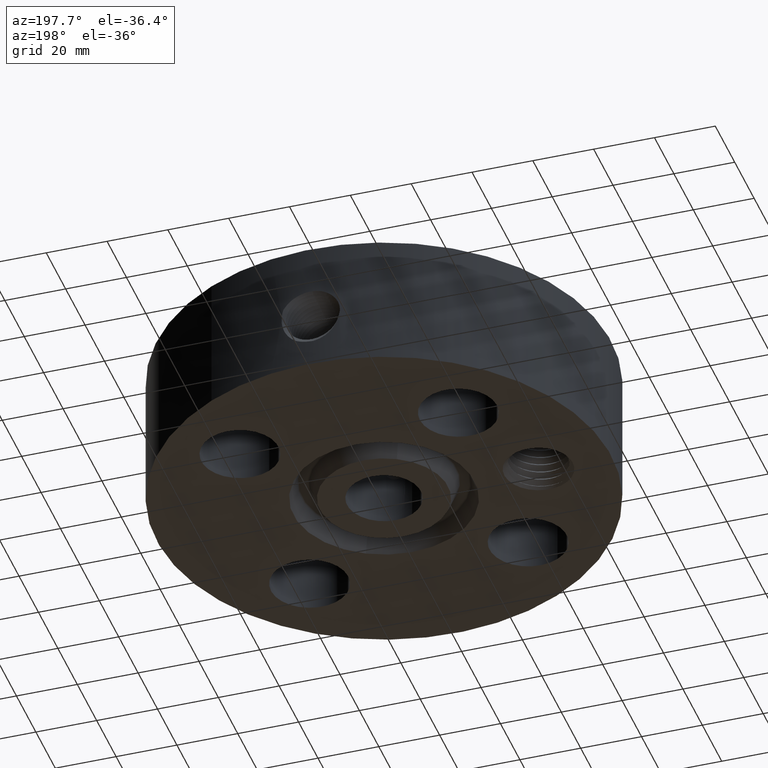
[diagram: clean part render]
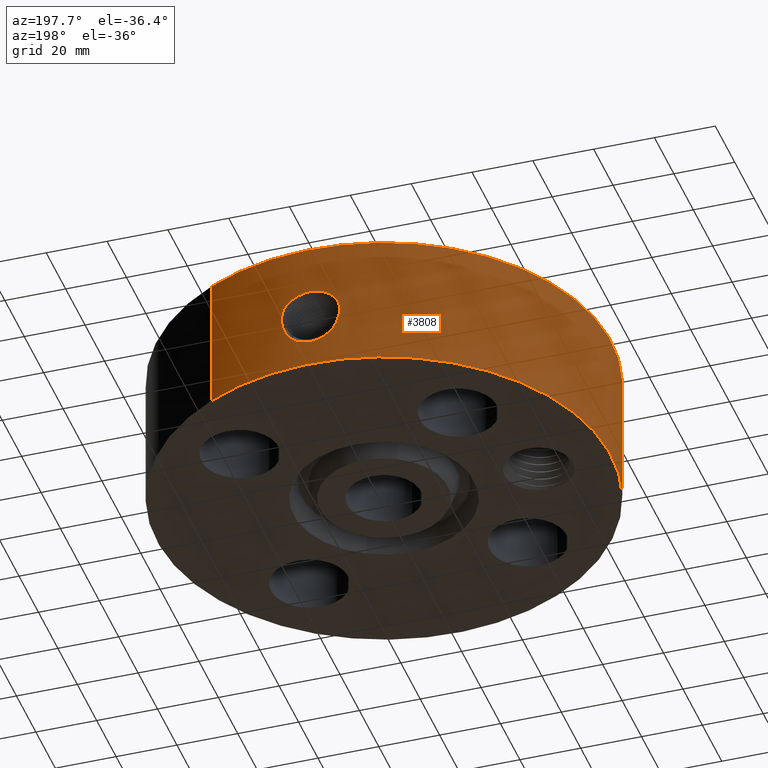
[diagram: same view with one face highlighted and labeled with its STEP entity id]
A machine part, auxiliary view. The second image highlights one B-rep face of the part: STEP entity #3808.
In plain terms, the highlighted cylindrical surface (partial cylindrical patch) has radius 74.676 mm, axis along (0, 0, -1).
Its self-contained STEP definition (entity closure, byte-faithful):
#2927=AXIS2_PLACEMENT_3D('Circle Axis2P3D',#2925,#2926,$) ;
#3663=AXIS2_PLACEMENT_3D('Cylinder Axis2P3D',#3660,#3661,#3662) ;
#3667=AXIS2_PLACEMENT_3D('Circle Axis2P3D',#3665,#3666,$) ;
#2920=CARTESIAN_POINT('Vertex',(1.4095110835,2.58009273197,1.75000000001)) ;
#2922=CARTESIAN_POINT('Vertex',(-1.4095110835,-2.58009273197,1.75000000001)) ;
#2925=CARTESIAN_POINT('Axis2P3D Location',(0.,0.,1.75000000001)) ;
#3660=CARTESIAN_POINT('Axis2P3D Location',(0.,0.,1.75000000001)) ;
#3665=CARTESIAN_POINT('Axis2P3D Location',(0.,0.,2.79741234551E-016)) ;
#3669=CARTESIAN_POINT('Vertex',(-1.4095110835,-2.58009273197,0.)) ;
#3671=CARTESIAN_POINT('Vertex',(1.4095110835,2.58009273197,0.)) ;
#3674=CARTESIAN_POINT('Line Origine',(-1.4095110835,-2.58009273197,0.875000000003)) ;
#3679=CARTESIAN_POINT('Line Origine',(1.4095110835,2.58009273197,0.875000000003)) ;
#3691=CARTESIAN_POINT('Control Point',(-0.169700366944,2.93509825824,1.06063443806)) ;
#3692=CARTESIAN_POINT('Control Point',(-0.131085530342,2.93733087581,1.08180932067)) ;
#3693=CARTESIAN_POINT('Control Point',(-0.0889177433839,2.93909301678,1.0965837277)) ;
#3694=CARTESIAN_POINT('Control Point',(-0.0448209569393,2.9399891375,1.10402874798)) ;
#3695=CARTESIAN_POINT('Control Point',(-0.000718274457064,2.93999991227,1.10411849394)) ;
#3696=CARTESIAN_POINT('Vertex',(-0.169700366944,2.93509825824,1.06063443806)) ;
#3698=CARTESIAN_POINT('Vertex',(-0.000717903984773,2.93999991236,1.10411850387)) ;
#3702=CARTESIAN_POINT('Control Point',(-0.199791073538,2.93320362863,1.04211912548)) ;
#3703=CARTESIAN_POINT('Control Point',(-0.190079562307,2.93386511467,1.0487862313)) ;
#3704=CARTESIAN_POINT('Control Point',(-0.180032879056,2.93450085708,1.05496848813)) ;
#3705=CARTESIAN_POINT('Control Point',(-0.169700366944,2.93509825824,1.06063443806)) ;
#3706=CARTESIAN_POINT('Vertex',(-0.199780777618,2.93320402896,1.0421261842)) ;
#3710=CARTESIAN_POINT('Control Point',(-0.34506361677,2.91967996542,0.673306923274)) ;
#3711=CARTESIAN_POINT('Control Point',(-0.3583098038,2.91811445918,0.712767227099)) ;
#3712=CARTESIAN_POINT('Control Point',(-0.36482768825,2.91726797081,0.75486871375)) ;
#3713=CARTESIAN_POINT('Control Point',(-0.363474123528,2.91744520346,0.798064414402)) ;
#3714=CARTESIAN_POINT('Control Point',(-0.344937033169,2.91981225162,0.88342999424)) ;
#3715=CARTESIAN_POINT('Control Point',(-0.299056820006,2.92490799639,0.9575201359)) ;
#3716=CARTESIAN_POINT('Control Point',(-0.269831468578,2.92785982832,0.990770006024)) ;
#3717=CARTESIAN_POINT('Control Point',(-0.236375450335,2.93071186714,1.01904410814)) ;
#3718=CARTESIAN_POINT('Control Point',(-0.199780516738,2.93320434767,1.04212578833)) ;
#3719=CARTESIAN_POINT('Vertex',(-0.345064098333,2.91967961509,0.673306674958)) ;
#3723=CARTESIAN_POINT('Control Point',(-0.338276411989,2.92047411719,0.647346824529)) ;
#3724=CARTESIAN_POINT('Control Point',(-0.340865596909,2.92017421376,0.655911274981)) ;
#3725=CARTESIAN_POINT('Control Point',(-0.343130753686,2.91990840275,0.664574595669)) ;
#3726=CARTESIAN_POINT('Control Point',(-0.345065246214,2.91967977284,0.673311896522)) ;
#3727=CARTESIAN_POINT('Vertex',(-0.338277883822,2.92047432402,0.647351428598)) ;
#3731=CARTESIAN_POINT('Control Point',(-0.0275173268744,2.93987122112,0.340942006435)) ;
#3732=CARTESIAN_POINT('Control Point',(-0.0762223838759,2.9394153396,0.347299418923)) ;
#3733=CARTESIAN_POINT('Control Point',(-0.123500792099,2.937964098,0.362621511108)) ;
#3734=CARTESIAN_POINT('Control Point',(-0.166891887126,2.93566147174,0.386269408402)) ;
#3735=CARTESIAN_POINT('Control Point',(-0.2418445424,2.9304753363,0.444906617799)) ;
#3736=CARTESIAN_POINT('Control Point',(-0.294766646892,2.92532991451,0.521484753112)) ;
#3737=CARTESIAN_POINT('Control Point',(-0.315003642533,2.92313640206,0.561985172137)) ;
#3738=CARTESIAN_POINT('Control Point',(-0.329503482282,2.92149028206,0.604252697731)) ;
#3739=CARTESIAN_POINT('Control Point',(-0.338277313576,2.92047401276,0.647351395214)) ;
#3740=CARTESIAN_POINT('Vertex',(-0.0275173268744,2.93987122112,0.340942006435)) ;
#3744=CARTESIAN_POINT('Control Point',(-0.0275173268744,2.93987122112,0.340942006435)) ;
#3745=CARTESIAN_POINT('Control Point',(-0.0183369221419,2.93995715012,0.340841669845)) ;
#3746=CARTESIAN_POINT('Control Point',(-0.00915835337652,2.94000000851,0.340985895786)) ;
#3747=CARTESIAN_POINT('Control Point',(2.72878353239E-006,2.94000000001,0.341374667803)) ;
#3748=CARTESIAN_POINT('Vertex',(2.72878353429E-006,2.94000000001,0.341374667803)) ;
#3752=CARTESIAN_POINT('Control Point',(0.196461758711,2.93342850219,0.390384428302)) ;
#3753=CARTESIAN_POINT('Control Point',(0.150541537967,2.93650393672,0.36807454774)) ;
#3754=CARTESIAN_POINT('Control Point',(0.101543565512,2.93882209151,0.352443293339)) ;
#3755=CARTESIAN_POINT('Control Point',(0.0509887692481,2.93999995269,0.343538380556)) ;
#3756=CARTESIAN_POINT('Control Point',(2.72878353763E-006,2.94000000001,0.341374667803)) ;
#3757=CARTESIAN_POINT('Vertex',(0.196461421185,2.93342346249,0.390384428302)) ;
#3761=CARTESIAN_POINT('Control Point',(0.196461794057,2.93342849982,0.390384447707)) ;
#3762=CARTESIAN_POINT('Control Point',(0.196533175314,2.93342371917,0.390423635179)) ;
#3763=CARTESIAN_POINT('Control Point',(0.196604556338,2.93341893505,0.390462822651)) ;
#3764=CARTESIAN_POINT('Vertex',(0.196604556338,2.93341893505,0.390462822651)) ;
#3768=CARTESIAN_POINT('Control Point',(0.196604556338,2.93341893505,0.390462822651)) ;
#3769=CARTESIAN_POINT('Control Point',(0.238592000763,2.93060483891,0.416305213245)) ;
#3770=CARTESIAN_POINT('Control Point',(0.276117910717,2.9273351574,0.449020648595)) ;
#3771=CARTESIAN_POINT('Control Point',(0.307968912244,2.92401885466,0.486947807889)) ;
#3772=CARTESIAN_POINT('Control Point',(0.372076346215,2.91667343123,0.589443113874)) ;
#3773=CARTESIAN_POINT('Control Point',(0.400070786757,2.91264589938,0.707593443783)) ;
#3774=CARTESIAN_POINT('Control Point',(0.403738808349,2.9121038139,0.779863248816)) ;
#3775=CARTESIAN_POINT('Control Point',(0.394391606913,2.91351385758,0.851921489152)) ;
#3776=CARTESIAN_POINT('Control Point',(0.372039711615,2.91636528114,0.920500698451)) ;
#3777=CARTESIAN_POINT('Vertex',(0.372039711615,2.91636528114,0.920500698451)) ;
#3781=CARTESIAN_POINT('Control Point',(0.372039711615,2.91636528114,0.920500698451)) ;
#3782=CARTESIAN_POINT('Control Point',(0.322920720594,2.92263137386,0.996138317911)) ;
#3783=CARTESIAN_POINT('Control Point',(0.251553243545,2.93070739704,1.05504313551)) ;
#3784=CARTESIAN_POINT('Control Point',(0.169948928761,2.93699921288,1.09172364479)) ;
#3785=CARTESIAN_POINT('Control Point',(0.0841723406348,2.94000074044,1.10828021464)) ;
#3786=CARTESIAN_POINT('Control Point',(-2.58579354822E-005,2.9399999999,1.10415298444)) ;
#3787=CARTESIAN_POINT('Vertex',(-2.58579354873E-005,2.9399999999,1.10415298444)) ;
#3791=CARTESIAN_POINT('Control Point',(-0.000717903970393,2.93999991236,1.10411850386)) ;
#3792=CARTESIAN_POINT('Control Point',(-0.000371902896506,2.93999999685,1.10413602199)) ;
#3793=CARTESIAN_POINT('Control Point',(-2.58579462961E-005,2.9399999999,1.10415298443)) ;
#2926=DIRECTION('Axis2P3D Direction',(0.,0.,-0.0393700787402)) ;
#3661=DIRECTION('Axis2P3D Direction',(0.,0.,-0.0393700787402)) ;
#3662=DIRECTION('Axis2P3D XDirection',(0.0188750212049,0.0345504945626,0.)) ;
#3666=DIRECTION('Axis2P3D Direction',(0.,0.,-0.0393700787402)) ;
#3675=DIRECTION('Vector Direction',(0.,0.,-0.0393700787402)) ;
#3680=DIRECTION('Vector Direction',(0.,0.,-0.0393700787402)) ;
#3676=VECTOR('Line Direction',#3675,0.0393700787402) ;
#3681=VECTOR('Line Direction',#3680,0.0393700787402) ;
#3685=ORIENTED_EDGE('',*,*,#3673,.F.) ;
#3686=ORIENTED_EDGE('',*,*,#3678,.T.) ;
#3687=ORIENTED_EDGE('',*,*,#2929,.T.) ;
#3688=ORIENTED_EDGE('',*,*,#3683,.F.) ;
#3796=ORIENTED_EDGE('',*,*,#3700,.F.) ;
#3797=ORIENTED_EDGE('',*,*,#3708,.F.) ;
#3798=ORIENTED_EDGE('',*,*,#3721,.F.) ;
#3799=ORIENTED_EDGE('',*,*,#3729,.F.) ;
#3800=ORIENTED_EDGE('',*,*,#3742,.F.) ;
#3801=ORIENTED_EDGE('',*,*,#3750,.T.) ;
#3802=ORIENTED_EDGE('',*,*,#3759,.F.) ;
#3803=ORIENTED_EDGE('',*,*,#3766,.T.) ;
#3804=ORIENTED_EDGE('',*,*,#3779,.T.) ;
#3805=ORIENTED_EDGE('',*,*,#3789,.T.) ;
#3806=ORIENTED_EDGE('',*,*,#3794,.F.) ;
#3807=FACE_BOUND('',#3795,.T.) ;
#3808=ADVANCED_FACE('PartBody',(#3689,#3807),#3664,.T.) ;
#3690=B_SPLINE_CURVE_WITH_KNOTS('',4,(#3691,#3692,#3693,#3694,#3695),.UNSPECIFIED.,.F.,.U.,(5,5),(0.,6.52375944429),.UNSPECIFIED.) ;
#3701=B_SPLINE_CURVE_WITH_KNOTS('',3,(#3702,#3703,#3704,#3705),.UNSPECIFIED.,.F.,.U.,(4,4),(27.427602186,28.7368170384),.UNSPECIFIED.) ;
#3709=B_SPLINE_CURVE_WITH_KNOTS('',5,(#3710,#3711,#3712,#3713,#3714,#3715,#3716,#3717,#3718),.UNSPECIFIED.,.F.,.U.,(6,3,6),(0.,7.77867063943,15.863687785),.UNSPECIFIED.) ;
#3722=B_SPLINE_CURVE_WITH_KNOTS('',3,(#3723,#3724,#3725,#3726),.UNSPECIFIED.,.F.,.U.,(4,4),(10.8529361739,11.8469806349),.UNSPECIFIED.) ;
#3730=B_SPLINE_CURVE_WITH_KNOTS('',5,(#3731,#3732,#3733,#3734,#3735,#3736,#3737,#3738,#3739),.UNSPECIFIED.,.F.,.U.,(6,3,6),(0.,8.53786061277,16.7787300395),.UNSPECIFIED.) ;
#3743=B_SPLINE_CURVE_WITH_KNOTS('',3,(#3744,#3745,#3746,#3747),.UNSPECIFIED.,.F.,.U.,(4,4),(0.,0.957440174971),.UNSPECIFIED.) ;
#3751=B_SPLINE_CURVE_WITH_KNOTS('',4,(#3752,#3753,#3754,#3755,#3756),.UNSPECIFIED.,.F.,.U.,(5,5),(0.,7.10484964948),.UNSPECIFIED.) ;
#3760=B_SPLINE_CURVE_WITH_KNOTS('',2,(#3761,#3762,#3763),.UNSPECIFIED.,.F.,.U.,(3,3),(-0.00207138548236,0.00207241144614),.UNSPECIFIED.) ;
#3767=B_SPLINE_CURVE_WITH_KNOTS('',5,(#3768,#3769,#3770,#3771,#3772,#3773,#3774,#3775,#3776),.UNSPECIFIED.,.F.,.U.,(6,3,6),(0.,8.57505192143,21.1331301305),.UNSPECIFIED.) ;
#3780=B_SPLINE_CURVE_WITH_KNOTS('',5,(#3781,#3782,#3783,#3784,#3785,#3786),.UNSPECIFIED.,.F.,.U.,(6,6),(0.,15.738381811),.UNSPECIFIED.) ;
#3790=B_SPLINE_CURVE_WITH_KNOTS('',2,(#3791,#3792,#3793),.UNSPECIFIED.,.F.,.U.,(3,3),(1.20450598459,1.23037916553),.UNSPECIFIED.) ;
#2928=CIRCLE('generated circle',#2927,2.94000000001) ;
#3668=CIRCLE('generated circle',#3667,2.94000000001) ;
#3664=CYLINDRICAL_SURFACE('generated cylinder',#3663,2.94000000001) ;
#2929=EDGE_CURVE('',#2923,#2921,#2928,.T.) ;
#3673=EDGE_CURVE('',#3670,#3672,#3668,.T.) ;
#3678=EDGE_CURVE('',#3670,#2923,#3677,.F.) ;
#3683=EDGE_CURVE('',#3672,#2921,#3682,.F.) ;
#3700=EDGE_CURVE('',#3697,#3699,#3690,.T.) ;
#3708=EDGE_CURVE('',#3707,#3697,#3701,.T.) ;
#3721=EDGE_CURVE('',#3720,#3707,#3709,.T.) ;
#3729=EDGE_CURVE('',#3728,#3720,#3722,.T.) ;
#3742=EDGE_CURVE('',#3741,#3728,#3730,.T.) ;
#3750=EDGE_CURVE('',#3741,#3749,#3743,.T.) ;
#3759=EDGE_CURVE('',#3758,#3749,#3751,.T.) ;
#3766=EDGE_CURVE('',#3758,#3765,#3760,.T.) ;
#3779=EDGE_CURVE('',#3765,#3778,#3767,.T.) ;
#3789=EDGE_CURVE('',#3778,#3788,#3780,.T.) ;
#3794=EDGE_CURVE('',#3699,#3788,#3790,.T.) ;
#3684=EDGE_LOOP('',(#3685,#3686,#3687,#3688)) ;
#3795=EDGE_LOOP('',(#3796,#3797,#3798,#3799,#3800,#3801,#3802,#3803,#3804,#3805,#3806)) ;
#3689=FACE_OUTER_BOUND('',#3684,.T.) ;
#3677=LINE('Line',#3674,#3676) ;
#3682=LINE('Line',#3679,#3681) ;
#2921=VERTEX_POINT('',#2920) ;
#2923=VERTEX_POINT('',#2922) ;
#3670=VERTEX_POINT('',#3669) ;
#3672=VERTEX_POINT('',#3671) ;
#3697=VERTEX_POINT('',#3696) ;
#3699=VERTEX_POINT('',#3698) ;
#3707=VERTEX_POINT('',#3706) ;
#3720=VERTEX_POINT('',#3719) ;
#3728=VERTEX_POINT('',#3727) ;
#3741=VERTEX_POINT('',#3740) ;
#3749=VERTEX_POINT('',#3748) ;
#3758=VERTEX_POINT('',#3757) ;
#3765=VERTEX_POINT('',#3764) ;
#3778=VERTEX_POINT('',#3777) ;
#3788=VERTEX_POINT('',#3787) ;